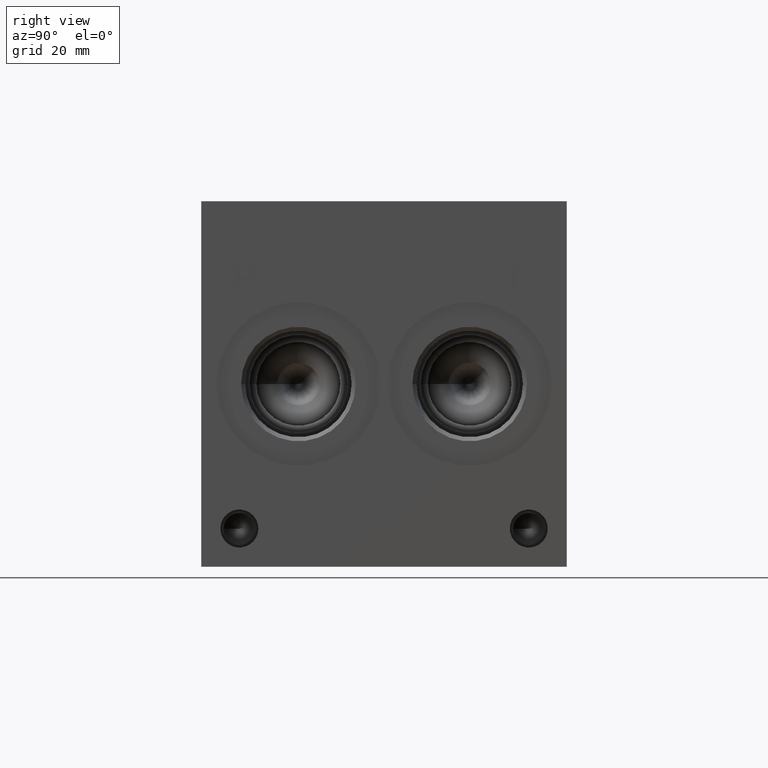
[diagram: clean part render]
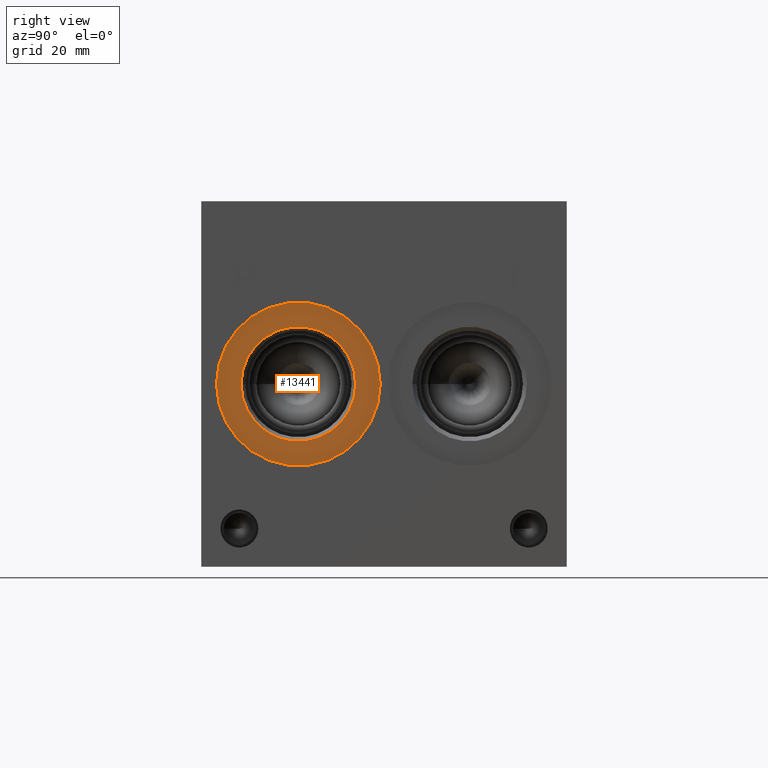
[diagram: same view with one face highlighted and labeled with its STEP entity id]
A machine part, right view. The second image highlights one B-rep face of the part: STEP entity #13441.
In plain terms, the highlighted planar face has unit normal (1, 0, 0).
Its self-contained STEP definition (entity closure, byte-faithful):
#450=CIRCLE('',#14251,17.0688);
#451=CIRCLE('',#14252,17.0688);
#452=CIRCLE('',#14253,11.9507);
#576=FACE_BOUND('',#2611,.T.);
#1825=FACE_OUTER_BOUND('',#2610,.T.);
#2610=EDGE_LOOP('',(#11726,#11727));
#2611=EDGE_LOOP('',(#11728));
#6264=VERTEX_POINT('',#23324);
#6265=VERTEX_POINT('',#23325);
#6266=VERTEX_POINT('',#23328);
#8117=EDGE_CURVE('',#6264,#6265,#450,.T.);
#8118=EDGE_CURVE('',#6265,#6264,#451,.T.);
#8119=EDGE_CURVE('',#6266,#6266,#452,.T.);
#11726=ORIENTED_EDGE('',*,*,#8117,.T.);
#11727=ORIENTED_EDGE('',*,*,#8118,.T.);
#11728=ORIENTED_EDGE('',*,*,#8119,.F.);
#12272=PLANE('',#14250);
#13441=ADVANCED_FACE('',(#1825,#576),#12272,.T.);
#14250=AXIS2_PLACEMENT_3D('',#23323,#17002,#17003);
#14251=AXIS2_PLACEMENT_3D('',#23326,#17004,#17005);
#14252=AXIS2_PLACEMENT_3D('',#23327,#17006,#17007);
#14253=AXIS2_PLACEMENT_3D('',#23329,#17008,#17009);
#17002=DIRECTION('center_axis',(1.,0.,0.));
#17003=DIRECTION('ref_axis',(0.,1.,0.));
#17004=DIRECTION('center_axis',(1.,0.,0.));
#17005=DIRECTION('ref_axis',(0.,1.,0.));
#17006=DIRECTION('center_axis',(1.,0.,0.));
#17007=DIRECTION('ref_axis',(0.,1.,0.));
#17008=DIRECTION('center_axis',(1.,0.,0.));
#17009=DIRECTION('ref_axis',(0.,1.,0.));
#23323=CARTESIAN_POINT('Origin',(107.1626,20.2438,38.1));
#23324=CARTESIAN_POINT('',(107.1626,37.3126,38.1));
#23325=CARTESIAN_POINT('',(107.1626,3.175,38.1));
#23326=CARTESIAN_POINT('Origin',(107.1626,20.2438,38.1));
#23327=CARTESIAN_POINT('Origin',(107.1626,20.2438,38.1));
#23328=CARTESIAN_POINT('',(107.1626,8.2931,38.1));
#23329=CARTESIAN_POINT('Origin',(107.1626,20.2438,38.1));